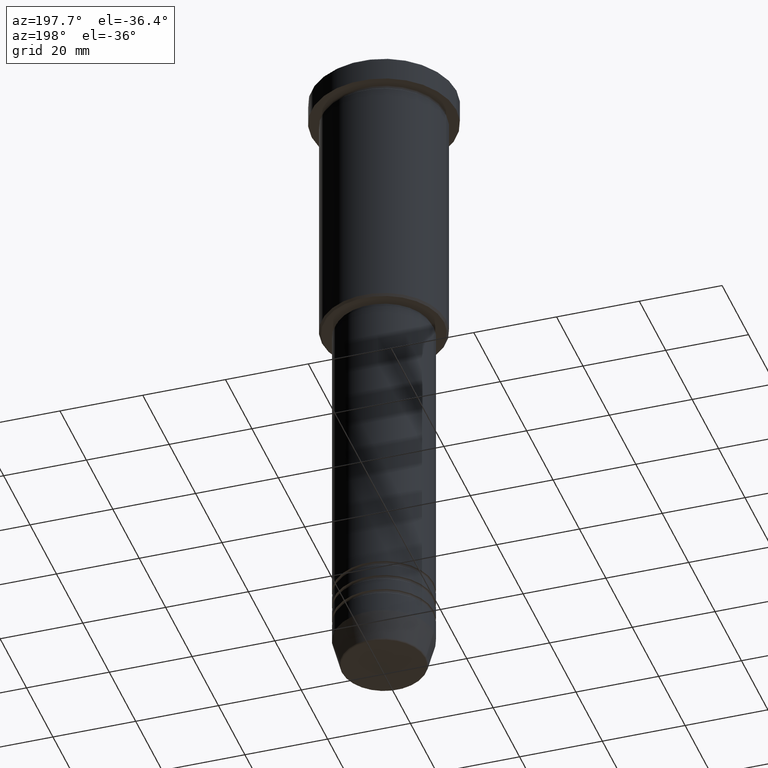
[diagram: clean part render]
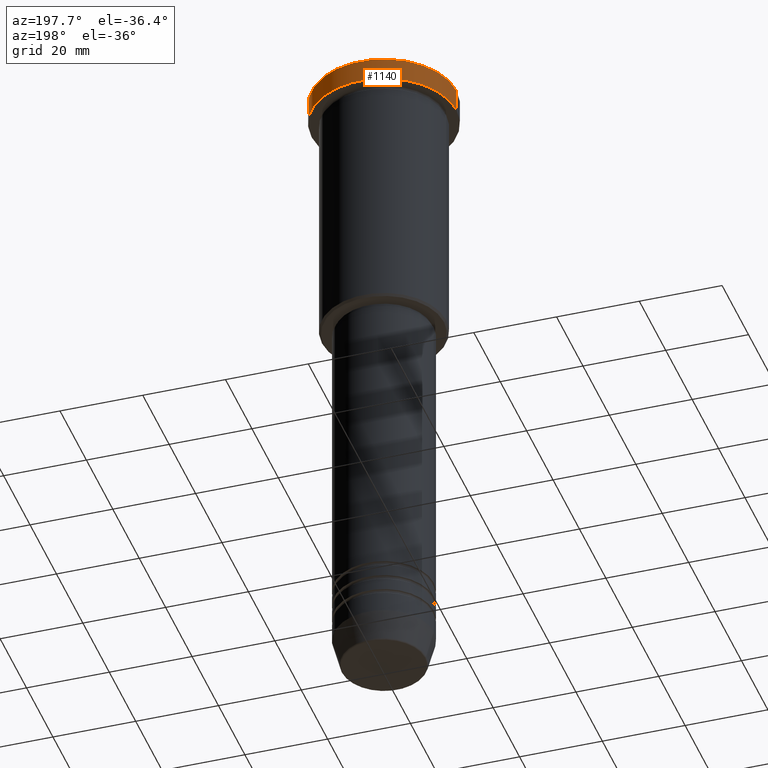
[diagram: same view with one face highlighted and labeled with its STEP entity id]
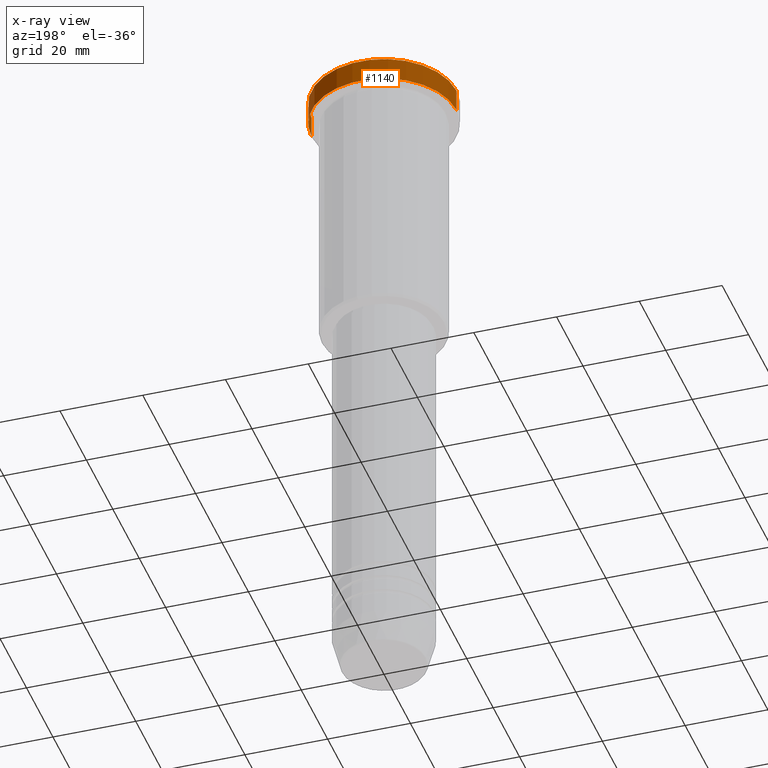
[diagram: x-ray of the same camera — body ghosted, the highlighted face saturated]
A machine part, auxiliary view. The second image highlights one B-rep face of the part: STEP entity #1140.
The next image is the same camera in x-ray: the body ghosted, the highlighted face saturated — about 0% of this face is hidden behind the body in this view.
In plain terms, the highlighted cylindrical surface (partial cylindrical patch) has radius 17.5 mm, axis along (-0, -0, 1).
Its self-contained STEP definition (entity closure, byte-faithful):
#9 = CARTESIAN_POINT ( 'NONE',  ( 17.50000000000000000, 0.000000000000000000, -5.999999999999995559 ) ) ;
#36 = EDGE_CURVE ( 'NONE', #1064, #70, #68, .T. ) ;
#47 = DIRECTION ( 'NONE',  ( -0.000000000000000000, -0.000000000000000000, 1.000000000000000000 ) ) ;
#61 = AXIS2_PLACEMENT_3D ( 'NONE', #943, #502, #959 ) ;
#68 = CIRCLE ( 'NONE', #1151, 17.50000000000000000 ) ;
#70 = VERTEX_POINT ( 'NONE', #1050 ) ;
#152 = CARTESIAN_POINT ( 'NONE',  ( 0.000000000000000000, 0.000000000000000000, -5.999999999999995559 ) ) ;
#153 = DIRECTION ( 'NONE',  ( -0.000000000000000000, -0.000000000000000000, 1.000000000000000000 ) ) ;
#198 = ORIENTED_EDGE ( 'NONE', *, *, #1154, .F. ) ;
#238 = LINE ( 'NONE', #338, #239 ) ;
#239 = VECTOR ( 'NONE', #883, 1000.000000000000000 ) ;
#241 = CARTESIAN_POINT ( 'NONE',  ( 17.50000000000000000, 0.000000000000000000, 0.000000000000000000 ) ) ;
#246 = DIRECTION ( 'NONE',  ( -0.000000000000000000, -0.000000000000000000, 1.000000000000000000 ) ) ;
#321 = DIRECTION ( 'NONE',  ( 1.000000000000000000, 0.000000000000000000, 0.000000000000000000 ) ) ;
#334 = CARTESIAN_POINT ( 'NONE',  ( 0.000000000000000000, 0.000000000000000000, 0.000000000000000000 ) ) ;
#338 = CARTESIAN_POINT ( 'NONE',  ( -17.50000000000000000, 2.143131898507868248E-15, 0.000000000000000000 ) ) ;
#406 = VECTOR ( 'NONE', #153, 1000.000000000000000 ) ;
#429 = FACE_OUTER_BOUND ( 'NONE', #671, .T. ) ;
#435 = EDGE_CURVE ( 'NONE', #922, #1027, #742, .T. ) ;
#502 = DIRECTION ( 'NONE',  ( 0.000000000000000000, 0.000000000000000000, -1.000000000000000000 ) ) ;
#503 = ORIENTED_EDGE ( 'NONE', *, *, #36, .T. ) ;
#540 = EDGE_CURVE ( 'NONE', #70, #922, #238, .T. ) ;
#671 = EDGE_LOOP ( 'NONE', ( #503, #1047, #846, #198 ) ) ;
#692 = LINE ( 'NONE', #241, #406 ) ;
#742 = CIRCLE ( 'NONE', #61, 17.50000000000000000 ) ;
#792 = CYLINDRICAL_SURFACE ( 'NONE', #880, 17.50000000000000000 ) ;
#799 = CARTESIAN_POINT ( 'NONE',  ( -17.50000000000000000, 2.143131898507868248E-15, -0.5000000000000004441 ) ) ;
#846 = ORIENTED_EDGE ( 'NONE', *, *, #435, .T. ) ;
#880 = AXIS2_PLACEMENT_3D ( 'NONE', #334, #246, #1046 ) ;
#883 = DIRECTION ( 'NONE',  ( -0.000000000000000000, -0.000000000000000000, 1.000000000000000000 ) ) ;
#922 = VERTEX_POINT ( 'NONE', #799 ) ;
#926 = CARTESIAN_POINT ( 'NONE',  ( 17.50000000000000000, 0.000000000000000000, -0.5000000000000004441 ) ) ;
#943 = CARTESIAN_POINT ( 'NONE',  ( 0.000000000000000000, 0.000000000000000000, -0.5000000000000004441 ) ) ;
#959 = DIRECTION ( 'NONE',  ( 1.000000000000000000, 0.000000000000000000, 0.000000000000000000 ) ) ;
#1027 = VERTEX_POINT ( 'NONE', #926 ) ;
#1046 = DIRECTION ( 'NONE',  ( 1.000000000000000000, 0.000000000000000000, 0.000000000000000000 ) ) ;
#1047 = ORIENTED_EDGE ( 'NONE', *, *, #540, .T. ) ;
#1050 = CARTESIAN_POINT ( 'NONE',  ( -17.50000000000000000, 2.143131898507868248E-15, -5.999999999999995559 ) ) ;
#1064 = VERTEX_POINT ( 'NONE', #9 ) ;
#1140 = ADVANCED_FACE ( 'NONE', ( #429 ), #792, .T. ) ;
#1151 = AXIS2_PLACEMENT_3D ( 'NONE', #152, #47, #321 ) ;
#1154 = EDGE_CURVE ( 'NONE', #1064, #1027, #692, .T. ) ;